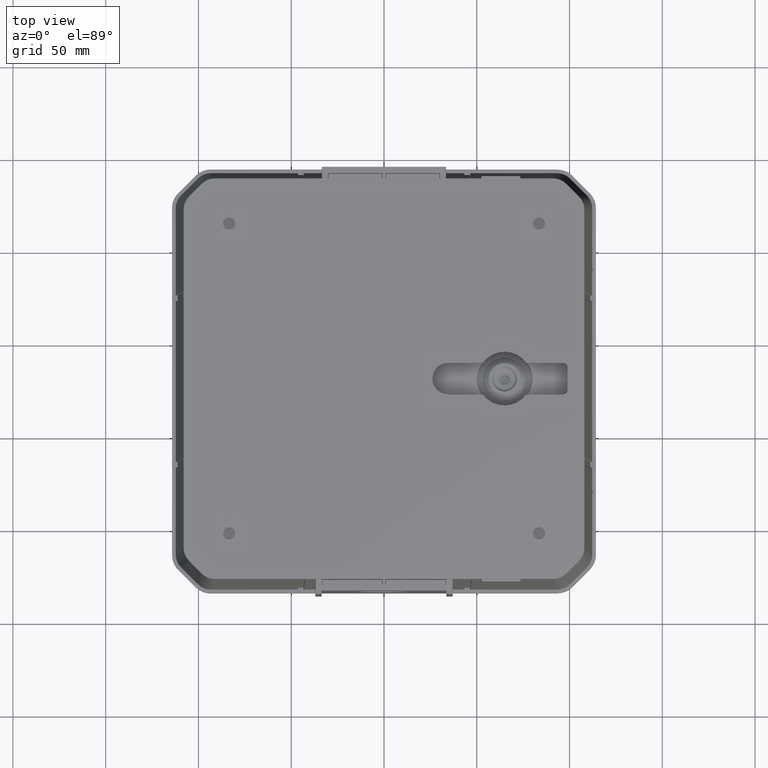
[diagram: clean part render]
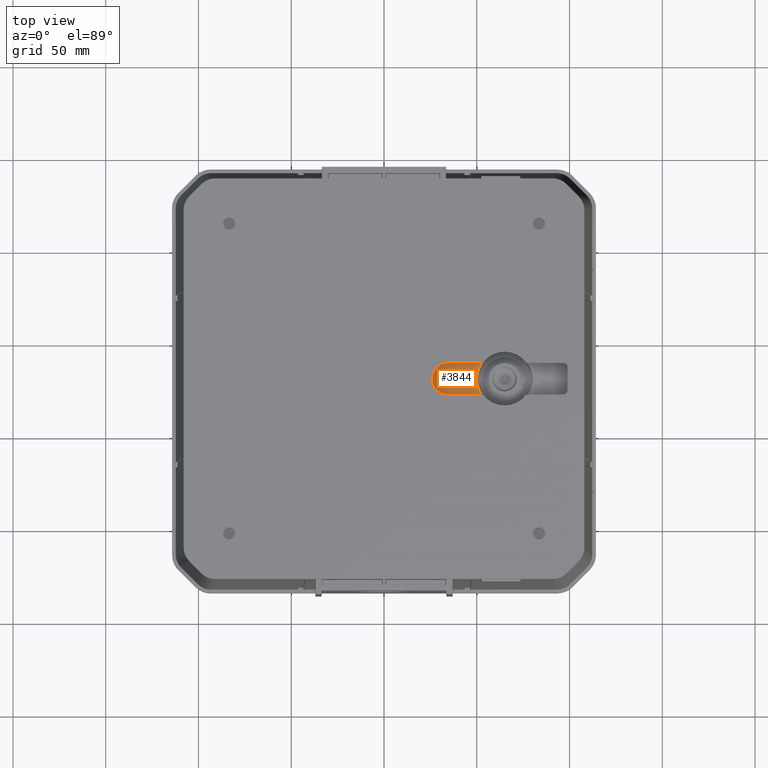
[diagram: same view with one face highlighted and labeled with its STEP entity id]
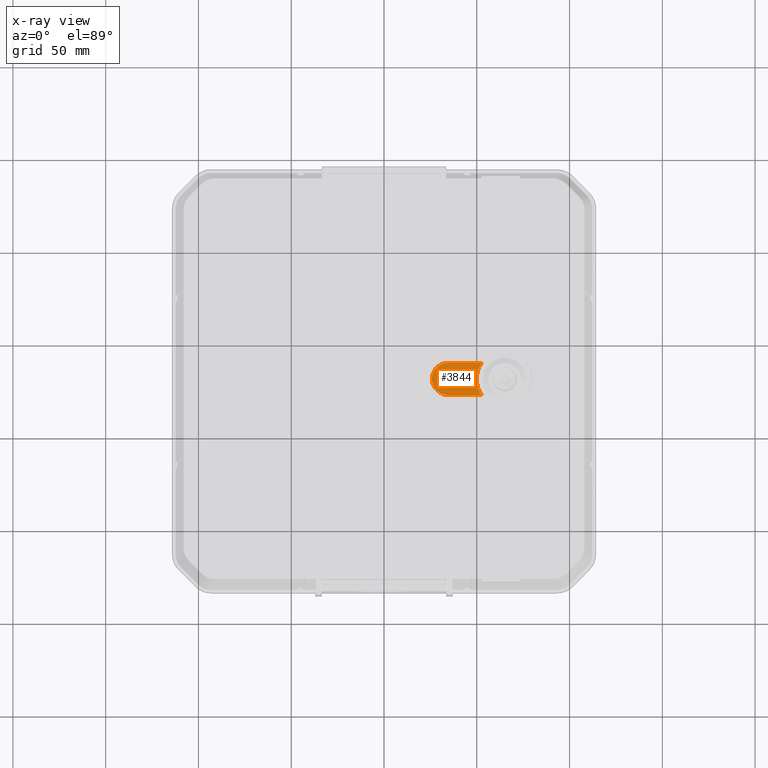
[diagram: x-ray of the same camera — body ghosted, the highlighted face saturated]
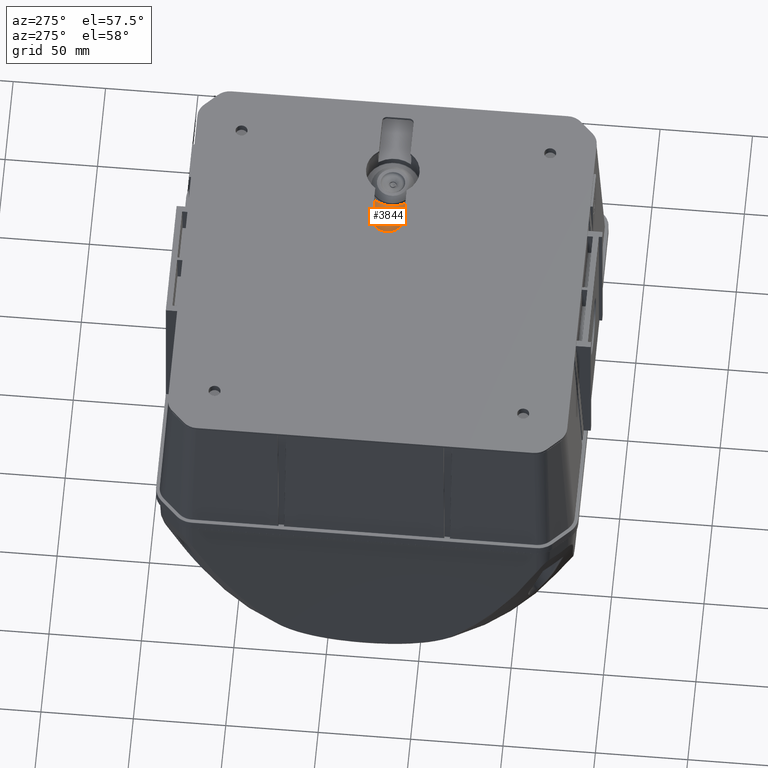
[diagram: same view with one face highlighted and labeled with its STEP entity id]
A machine part, top view. The second image highlights one B-rep face of the part: STEP entity #3844.
The next image is the same camera in x-ray: the body ghosted, the highlighted face saturated — about 0% of this face is hidden behind the body in this view.
A second angle (auxiliary view) of the same face is appended — the face is thin or edge-on in the first view.
In plain terms, the highlighted planar face has unit normal (0, 0, -1).
Its self-contained STEP definition (entity closure, byte-faithful):
#2458=FACE_OUTER_BOUND('',#5977,.T.);
#3844=ADVANCED_FACE('',(#2458),#4322,.F.);
#4322=PLANE('',#23679);
#5977=EDGE_LOOP('',(#13352,#13353,#13354,#13355));
#7314=LINE('',#45794,#8541);
#7334=LINE('',#45941,#8561);
#8541=VECTOR('',#28896,1.);
#8561=VECTOR('',#28996,1.);
#13352=ORIENTED_EDGE('',*,*,#19614,.T.);
#13353=ORIENTED_EDGE('',*,*,#19590,.T.);
#13354=ORIENTED_EDGE('',*,*,#19586,.T.);
#13355=ORIENTED_EDGE('',*,*,#19637,.T.);
#16832=VERTEX_POINT('',#45698);
#16845=VERTEX_POINT('',#45786);
#16846=VERTEX_POINT('',#45791);
#16859=VERTEX_POINT('',#45874);
#19586=EDGE_CURVE('',#16832,#16845,#21237,.T.);
#19590=EDGE_CURVE('',#16846,#16832,#7314,.T.);
#19614=EDGE_CURVE('',#16859,#16846,#21253,.T.);
#19637=EDGE_CURVE('',#16845,#16859,#7334,.T.);
#21237=CIRCLE('',#23400,15.1623044982993);
#21253=CIRCLE('',#23425,8.66664889300182);
#23400=AXIS2_PLACEMENT_3D('',#45787,#28887,#28888);
#23425=AXIS2_PLACEMENT_3D('',#45877,#28947,#28948);
#23679=AXIS2_PLACEMENT_3D('',#46543,#29531,#29532);
#28887=DIRECTION('',(0.,0.,1.));
#28888=DIRECTION('',(1.,0.,0.));
#28896=DIRECTION('',(2.17157212949229E-016,-1.,0.));
#28947=DIRECTION('',(0.,0.,-1.));
#28948=DIRECTION('',(0.999999999999999,0.,0.));
#28996=DIRECTION('',(0.,1.,0.));
#29531=DIRECTION('',(0.,0.,1.));
#29532=DIRECTION('',(1.,0.,0.));
#45698=CARTESIAN_POINT('',(-219.733351106998,-52.5587510809976,9.8));
#45786=CARTESIAN_POINT('',(-237.066648893002,-52.5587510809976,9.8));
#45787=CARTESIAN_POINT('',(-228.4,-65.,9.8));
#45791=CARTESIAN_POINT('',(-219.733351106998,-34.5,9.8));
#45794=CARTESIAN_POINT('',(-219.733351106998,-105.883299864526,9.8));
#45874=CARTESIAN_POINT('',(-237.066648893002,-34.5,9.8));
#45877=CARTESIAN_POINT('',(-228.4,-34.5,9.8));
#45941=CARTESIAN_POINT('',(-237.066648893002,-105.883299864526,9.8));
#46543=CARTESIAN_POINT('',(-237.4,-105.883299864526,9.8));